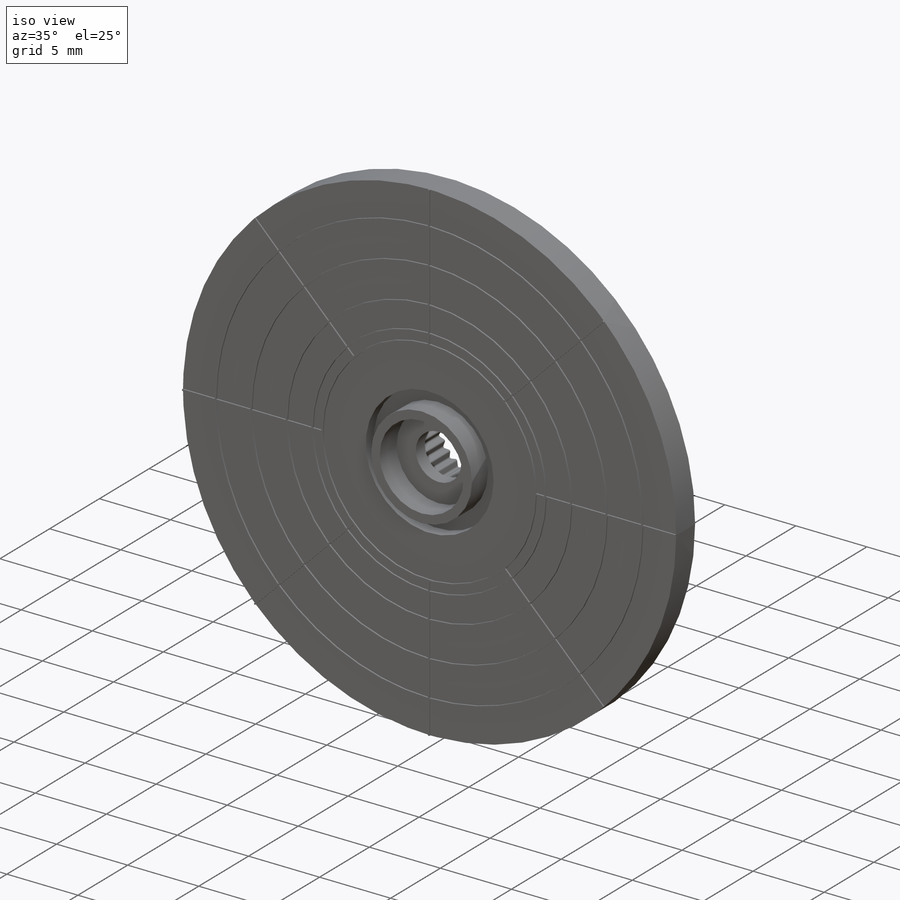
[diagram: iso view]
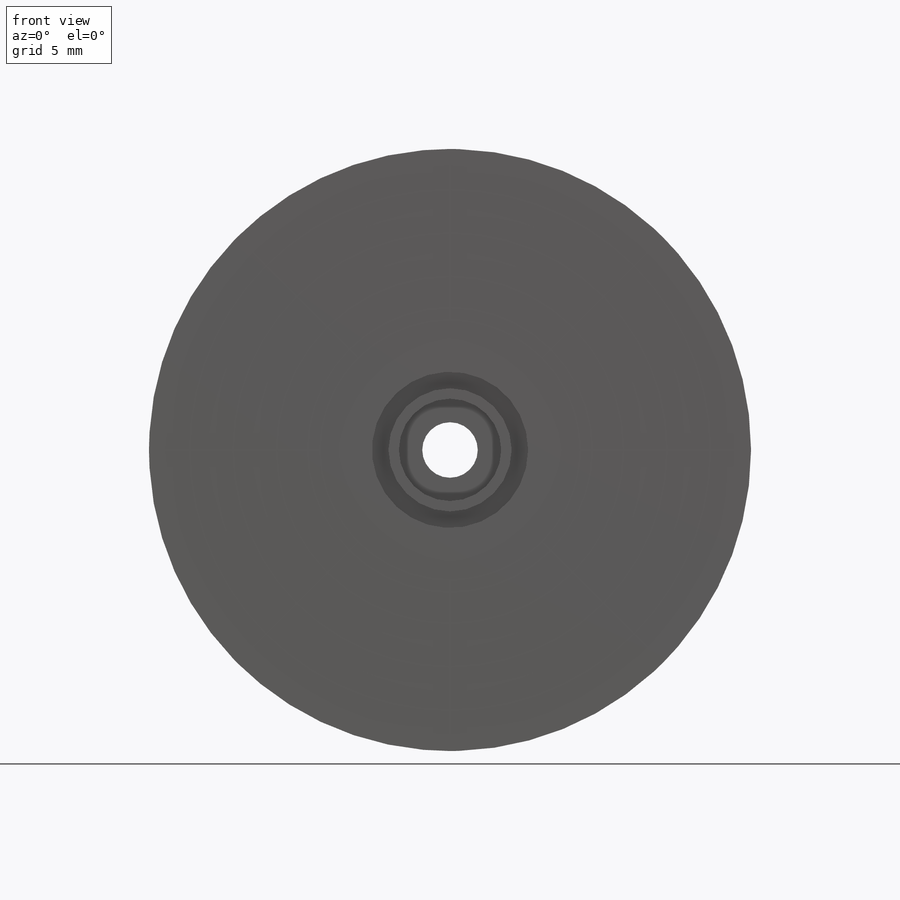
[diagram: front view]
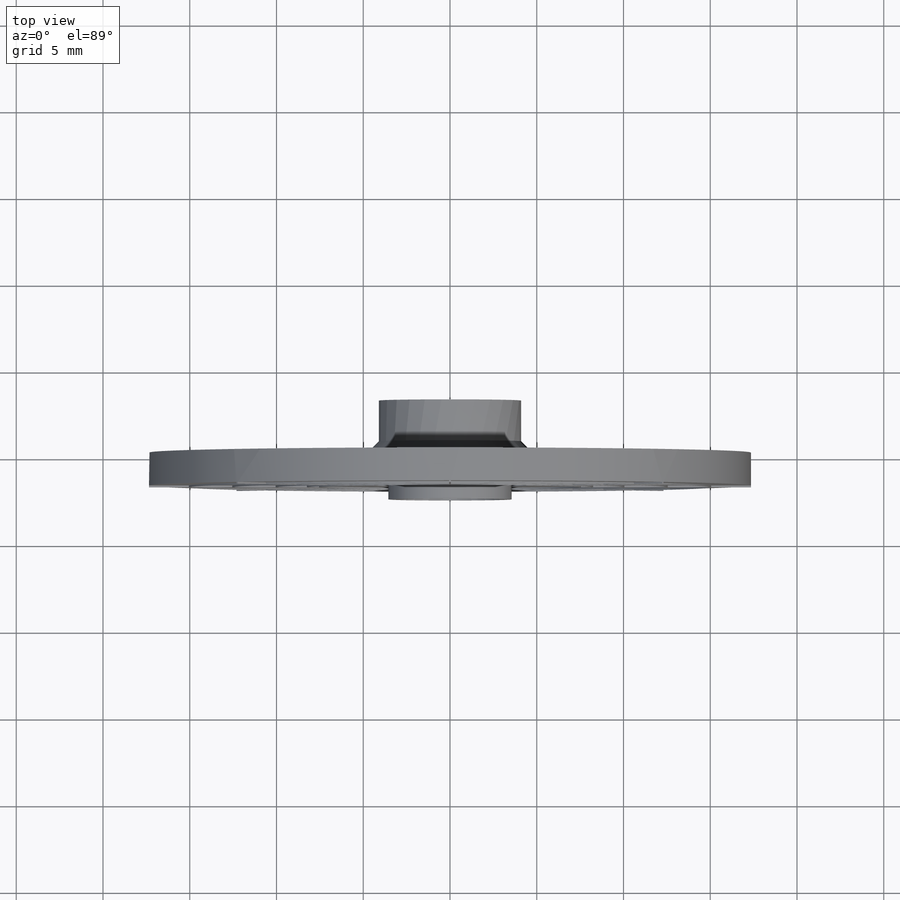
[diagram: top view]
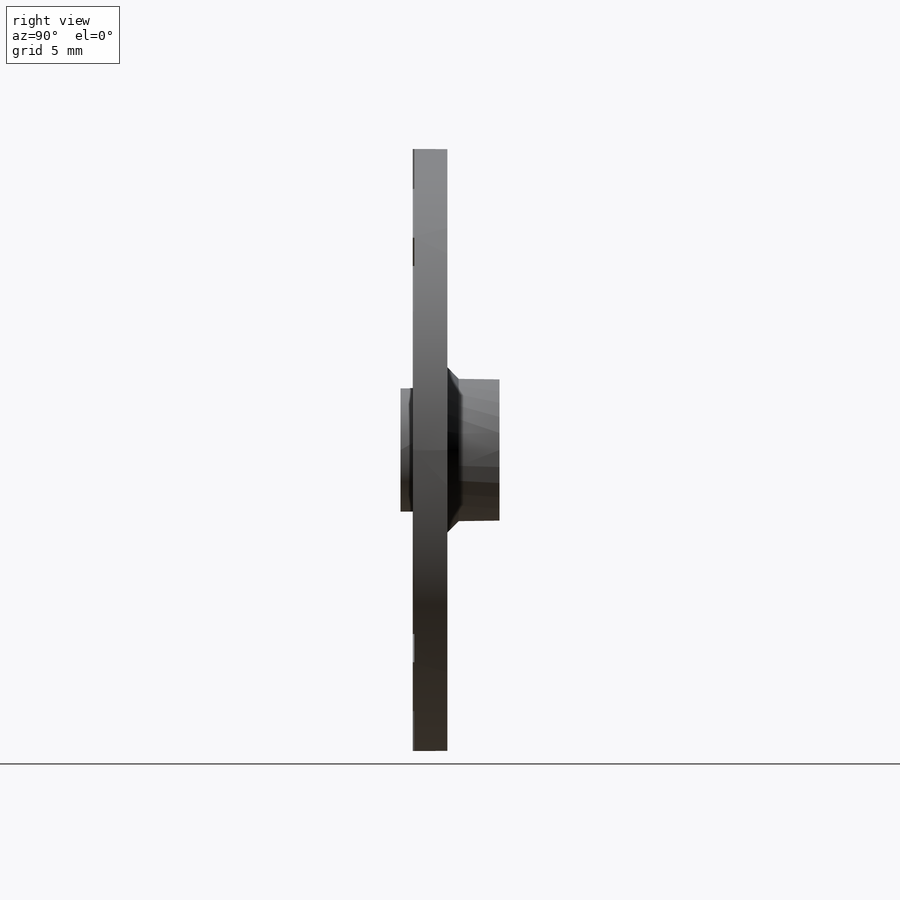
[diagram: right view]
SOLIDWORKS PART (.sldprt)
format: sldprt  version: not decoded by parser v0  size: 2,009,088 bytes
history: native  units: mm
features: sketch x7, cut_extrude x4, plane x3, material x1, revolve x1, extrude x1, pattern_circular x1 (+9 scaffold rows collapsed)
feature tree (27):
  scaffold x9  (default folders/planes/origin — collapsed)
  material  "PVC hart"
  plane  "Ebene vorne"
  plane  "Ebene oben"
  plane  "Ebene rechts"
  sketch  "Skizze5"  dims[c1.D1=8.2mm c1.D2=5.8mm c1.D3=5.7mm c1.D4=3.0mm c1.D5=1.9mm c1.D6=9.0mm c1.D7=7.1mm c1.D8=5.9mm c1.D9=3.2mm c1.D10=1.3mm c2.D10=90.0deg c3.D10=3.1mm c3.D11=1.65mm c4.D10=3.1mm c4.D12=0.8mm c4.D13=40.0mm c4.D14=~1.217136mm c5.D14=135.0deg c5.D15=9.5mm c5.D4=3.0mm c5.D3=~2.860778mm c6.D3=135.0deg c6.D4=3.0mm c6.D10=3.1mm c6.D11=5.7mm c6.D12=1.7mm c6.D14=0.8mm]
  revolve  "Rotation2"  Angle=360deg
  sketch  "Skizze4"  dims[c1.D2=5.2mm c1.D3=0.1mm c1.D1=~2.84664mm c2.D1=14.4deg]
  extrude  "Aufsatz-Linear austragen4"  [1 undecoded]
  pattern_circular  "Kreismuster1"  Count=25 Angle=14.4deg
  sketch  "Skizze6"  dims[D1=34.7mm]
  cut_extrude  "Rund1"  [1 undecoded]
  sketch  "Skizze7"  dims[c1.D1=15.0mm c1.D2=16.4mm c1.D3=20.0mm c1.D4=25.0mm c1.D5=30.0mm c1.D6=9.85mm c2.D6=45.0deg c2.D1=0.1mm c2.D5=0.1mm c3.D6=1.0mm c3.D7=5.0mm]
  sketch  "Skizze9"  dims[c1.D1=2.4mm c1.D3=34.0mm c1.D4=16.7mm c1.D6=13.5mm c2.D3=15.3mm c2.D8=1.8mm c2.D2=8.55mm c2.D5=20.0mm c3.D5=45.0deg c3.D7=3.2mm]
  cut_extrude  "2er"  [1 undecoded]
  sketch  "Skizze8"  dims[c1.D1=2.4mm c1.D3=34.0mm c1.D4=16.7mm c1.D6=13.5mm c2.D3=15.3mm c2.D8=1.8mm c2.D2=8.55mm c2.D5=20.0mm c3.D5=45.0deg c3.D7=3.2mm c3.D9=4.0]
  cut_extrude  "4er"  [1 undecoded]
  sketch  "Skizze10"  dims[c1.D1=1.8mm c1.D3=15.2mm c1.D4=2.4mm c1.D5=19.8mm c1.D6=25.5mm c1.D7=13.6mm c1.D2=6.8mm c2.D5=~4.860767mm c2.D7=6.0]
  cut_extrude  "Schnitt-Linear austragen2"  [1 undecoded]
decode coverage: 9 of 14 modeling features carry decoded parameters
note: ~ marks probable driven/reference dimensions
note: 5 parameter values undecoded
summary: no parameter record found for 5 features
note: suppression state not decoded; provenance and decode notes live in map.json
